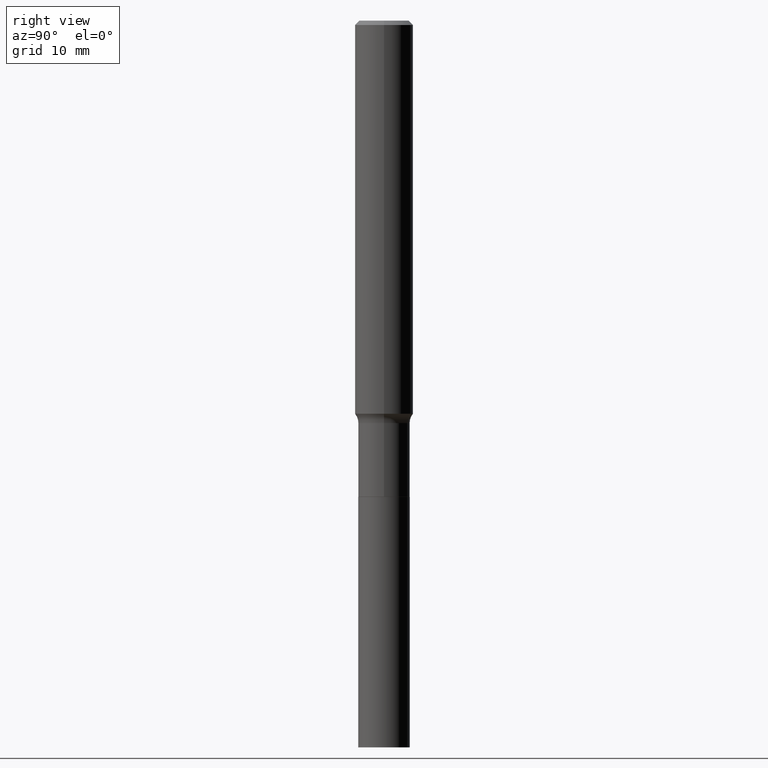
[diagram: clean part render]
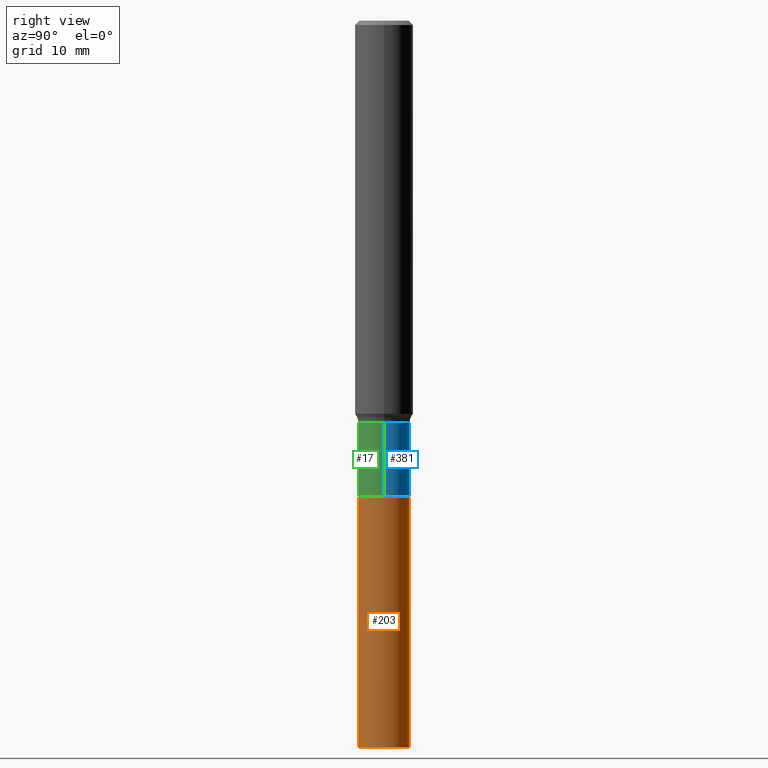
[diagram: same view with three faces highlighted in distinct colors, each labeled with its STEP entity id]
A machine part, right view with three faces highlighted in distinct colors.
Their STEP definitions:

[orange] entity #203 — the highlighted cylindrical surface (edge-blend (fillet) strip) has radius 3.5497 mm, axis along (-0, 0, 1).
#2 = AXIS2_PLACEMENT_3D ( 'NONE', #123, #92, #244 ) ;
#9 = DIRECTION ( 'NONE',  ( -6.982962677686265133E-15, -1.000000000000000000, 3.909621457837943227E-15 ) ) ;
#10 = EDGE_CURVE ( 'NONE', #197, #137, #383, .T. ) ;
#18 = CARTESIAN_POINT ( 'NONE',  ( 9.929834732248363439E-16, 0.1397499999999909925, -2.579000000000000625 ) ) ;
#29 = EDGE_CURVE ( 'NONE', #428, #271, #325, .T. ) ;
#40 = ORIENTED_EDGE ( 'NONE', *, *, #29, .T. ) ;
#63 = CARTESIAN_POINT ( 'NONE',  ( 9.929834732248030145E-16, 0.1397499999999910203, -2.579000000000000625 ) ) ;
#74 = CARTESIAN_POINT ( 'NONE',  ( 6.306864051151467131E-29, -9.004530372876471973E-15, -2.579000000000000181 ) ) ;
#80 = ORIENTED_EDGE ( 'NONE', *, *, #396, .T. ) ;
#86 = DIRECTION ( 'NONE',  ( -2.445656538134658831E-29, 3.491212496006390611E-15, 1.000000000000000000 ) ) ;
#92 = DIRECTION ( 'NONE',  ( -2.445656538134658831E-29, 3.491212496006390611E-15, 1.000000000000000000 ) ) ;
#123 = CARTESIAN_POINT ( 'NONE',  ( 6.306864051151467131E-29, -9.004530372876471973E-15, -2.579000000000000181 ) ) ;
#130 = FACE_OUTER_BOUND ( 'NONE', #404, .T. ) ;
#137 = VERTEX_POINT ( 'NONE', #18 ) ;
#142 = CARTESIAN_POINT ( 'NONE',  ( 9.929834732248195806E-16, 0.1397499999999862741, -3.937000000000001165 ) ) ;
#168 = CARTESIAN_POINT ( 'NONE',  ( -9.758690342065924904E-16, -0.1397500000000090059, -2.578999999999999293 ) ) ;
#176 = CARTESIAN_POINT ( 'NONE',  ( -9.758690342065593582E-16, -0.1397500000000137521, -3.937000000000000277 ) ) ;
#191 = AXIS2_PLACEMENT_3D ( 'NONE', #314, #445, #9 ) ;
#197 = VERTEX_POINT ( 'NONE', #168 ) ;
#203 = ADVANCED_FACE ( 'NONE', ( #130 ), #307, .T. ) ;
#219 = ORIENTED_EDGE ( 'NONE', *, *, #362, .F. ) ;
#244 = DIRECTION ( 'NONE',  ( -6.982962677686265133E-15, -1.000000000000000000, 3.909621457837943227E-15 ) ) ;
#252 = VECTOR ( 'NONE', #86, 39.37007874015748143 ) ;
#269 = AXIS2_PLACEMENT_3D ( 'NONE', #74, #299, #370 ) ;
#271 = VERTEX_POINT ( 'NONE', #142 ) ;
#299 = DIRECTION ( 'NONE',  ( -2.445656538134658831E-29, 3.491212496006390611E-15, 1.000000000000000000 ) ) ;
#306 = LINE ( 'NONE', #406, #252 ) ;
#307 = CYLINDRICAL_SURFACE ( 'NONE', #2, 0.1397500000000000131 ) ;
#312 = LINE ( 'NONE', #63, #350 ) ;
#314 = CARTESIAN_POINT ( 'NONE',  ( 9.628065629938335282E-29, -1.374559694245315281E-14, -3.937000000000000721 ) ) ;
#325 = CIRCLE ( 'NONE', #191, 0.1397500000000000131 ) ;
#350 = VECTOR ( 'NONE', #395, 39.37007874015748143 ) ;
#362 = EDGE_CURVE ( 'NONE', #428, #197, #306, .T. ) ;
#370 = DIRECTION ( 'NONE',  ( -6.982962677686265133E-15, -1.000000000000000000, 3.909621457837943227E-15 ) ) ;
#383 = CIRCLE ( 'NONE', #269, 0.1397500000000000131 ) ;
#389 = ORIENTED_EDGE ( 'NONE', *, *, #10, .F. ) ;
#395 = DIRECTION ( 'NONE',  ( -2.445656538134658831E-29, 3.491212496006390611E-15, 1.000000000000000000 ) ) ;
#396 = EDGE_CURVE ( 'NONE', #271, #137, #312, .T. ) ;
#404 = EDGE_LOOP ( 'NONE', ( #40, #80, #389, #219 ) ) ;
#406 = CARTESIAN_POINT ( 'NONE',  ( -9.758690342065924904E-16, -0.1397500000000090059, -2.578999999999999293 ) ) ;
#428 = VERTEX_POINT ( 'NONE', #176 ) ;
#445 = DIRECTION ( 'NONE',  ( -2.445656538134658831E-29, 3.491212496006390611E-15, 1.000000000000000000 ) ) ;

[blue] entity #381 — the highlighted cylindrical surface (edge-blend (fillet) strip) has radius 3.5496 mm, axis along (-0, 0, 1).
#7 = DIRECTION ( 'NONE',  ( -2.445468806185136597E-29, 3.491481338843145583E-15, 1.000000000000000000 ) ) ;
#19 = DIRECTION ( 'NONE',  ( -2.445468806185136597E-29, 3.491481338843145583E-15, 1.000000000000000000 ) ) ;
#20 = CARTESIAN_POINT ( 'NONE',  ( -0.1397499999999999576, -7.314298076284757115E-15, -2.180100000000000371 ) ) ;
#22 = VERTEX_POINT ( 'NONE', #277 ) ;
#31 = ORIENTED_EDGE ( 'NONE', *, *, #420, .F. ) ;
#41 = AXIS2_PLACEMENT_3D ( 'NONE', #112, #19, #426 ) ;
#67 = AXIS2_PLACEMENT_3D ( 'NONE', #177, #282, #248 ) ;
#77 = EDGE_CURVE ( 'NONE', #451, #120, #204, .T. ) ;
#106 = CARTESIAN_POINT ( 'NONE',  ( 0.1397499999999999576, -8.587647501018597988E-15, -2.180100000000000371 ) ) ;
#112 = CARTESIAN_POINT ( 'NONE',  ( 5.331366544364216431E-29, -7.611778466811941994E-15, -2.180100000000000371 ) ) ;
#120 = VERTEX_POINT ( 'NONE', #106 ) ;
#139 = CIRCLE ( 'NONE', #41, 0.1397499999999999576 ) ;
#164 = DIRECTION ( 'NONE',  ( 1.000000000000000000, -6.982962677686265922E-15, 4.876176775795935793E-29 ) ) ;
#173 = LINE ( 'NONE', #392, #262 ) ;
#177 = CARTESIAN_POINT ( 'NONE',  ( 6.305641316748374329E-29, -9.002784632207049680E-15, -2.578500000000000014 ) ) ;
#181 = AXIS2_PLACEMENT_3D ( 'NONE', #285, #7, #164 ) ;
#204 = LINE ( 'NONE', #410, #309 ) ;
#248 = DIRECTION ( 'NONE',  ( 1.000000000000000000, -6.982962677686273021E-15, 0.000000000000000000 ) ) ;
#261 = EDGE_CURVE ( 'NONE', #22, #290, #173, .T. ) ;
#262 = VECTOR ( 'NONE', #317, 39.37007874015748143 ) ;
#277 = CARTESIAN_POINT ( 'NONE',  ( -0.1397500000000000131, -7.314298076284757115E-15, -2.578500000000000014 ) ) ;
#281 = CIRCLE ( 'NONE', #67, 0.1397499999999999853 ) ;
#282 = DIRECTION ( 'NONE',  ( -2.445468806185136597E-29, 3.491481338843145583E-15, 1.000000000000000000 ) ) ;
#285 = CARTESIAN_POINT ( 'NONE',  ( 0.000000000000000000, 0.000000000000000000, 0.000000000000000000 ) ) ;
#290 = VERTEX_POINT ( 'NONE', #20 ) ;
#297 = EDGE_CURVE ( 'NONE', #451, #22, #281, .T. ) ;
#309 = VECTOR ( 'NONE', #347, 39.37007874015748143 ) ;
#317 = DIRECTION ( 'NONE',  ( -2.445468806185136877E-29, 3.491481338843145188E-15, 1.000000000000000000 ) ) ;
#319 = FACE_OUTER_BOUND ( 'NONE', #364, .T. ) ;
#332 = CARTESIAN_POINT ( 'NONE',  ( 0.1397499999999999853, -9.978653666413707252E-15, -2.578500000000000014 ) ) ;
#347 = DIRECTION ( 'NONE',  ( -2.445468806185136877E-29, 3.491481338843145188E-15, 1.000000000000000000 ) ) ;
#364 = EDGE_LOOP ( 'NONE', ( #461, #432, #31, #465 ) ) ;
#381 = ADVANCED_FACE ( 'NONE', ( #319 ), #452, .T. ) ;
#392 = CARTESIAN_POINT ( 'NONE',  ( -0.1397499999999999853, 9.929834732247399056E-16, -6.874211788631229584E-30 ) ) ;
#410 = CARTESIAN_POINT ( 'NONE',  ( 0.1397499999999999853, -9.758690342066555993E-16, 6.814457044174819178E-30 ) ) ;
#420 = EDGE_CURVE ( 'NONE', #120, #290, #139, .T. ) ;
#426 = DIRECTION ( 'NONE',  ( 1.000000000000000000, -6.982962677686267499E-15, 0.000000000000000000 ) ) ;
#432 = ORIENTED_EDGE ( 'NONE', *, *, #261, .T. ) ;
#451 = VERTEX_POINT ( 'NONE', #332 ) ;
#452 = CYLINDRICAL_SURFACE ( 'NONE', #181, 0.1397499999999999853 ) ;
#461 = ORIENTED_EDGE ( 'NONE', *, *, #297, .T. ) ;
#465 = ORIENTED_EDGE ( 'NONE', *, *, #77, .F. ) ;

[green] entity #17 — the highlighted cylindrical surface (edge-blend (fillet) strip) has radius 3.5496 mm, axis along (-0, 0, 1).
#14 = DIRECTION ( 'NONE',  ( -2.445468806185136597E-29, 3.491481338843145583E-15, 1.000000000000000000 ) ) ;
#17 = ADVANCED_FACE ( 'NONE', ( #429 ), #366, .T. ) ;
#20 = CARTESIAN_POINT ( 'NONE',  ( -0.1397499999999999576, -7.314298076284757115E-15, -2.180100000000000371 ) ) ;
#22 = VERTEX_POINT ( 'NONE', #277 ) ;
#50 = AXIS2_PLACEMENT_3D ( 'NONE', #407, #14, #414 ) ;
#60 = DIRECTION ( 'NONE',  ( -2.445468806185136597E-29, 3.491481338843145583E-15, 1.000000000000000000 ) ) ;
#77 = EDGE_CURVE ( 'NONE', #451, #120, #204, .T. ) ;
#98 = DIRECTION ( 'NONE',  ( 1.000000000000000000, -6.982962677686273021E-15, 0.000000000000000000 ) ) ;
#103 = CIRCLE ( 'NONE', #146, 0.1397499999999999853 ) ;
#106 = CARTESIAN_POINT ( 'NONE',  ( 0.1397499999999999576, -8.587647501018597988E-15, -2.180100000000000371 ) ) ;
#113 = DIRECTION ( 'NONE',  ( 1.000000000000000000, -6.982962677686267499E-15, 0.000000000000000000 ) ) ;
#120 = VERTEX_POINT ( 'NONE', #106 ) ;
#146 = AXIS2_PLACEMENT_3D ( 'NONE', #386, #60, #98 ) ;
#153 = CIRCLE ( 'NONE', #384, 0.1397499999999999576 ) ;
#155 = EDGE_CURVE ( 'NONE', #290, #120, #153, .T. ) ;
#173 = LINE ( 'NONE', #392, #262 ) ;
#183 = ORIENTED_EDGE ( 'NONE', *, *, #261, .F. ) ;
#187 = DIRECTION ( 'NONE',  ( -2.445468806185136597E-29, 3.491481338843145583E-15, 1.000000000000000000 ) ) ;
#204 = LINE ( 'NONE', #410, #309 ) ;
#234 = EDGE_LOOP ( 'NONE', ( #183, #301, #399, #401 ) ) ;
#261 = EDGE_CURVE ( 'NONE', #22, #290, #173, .T. ) ;
#262 = VECTOR ( 'NONE', #317, 39.37007874015748143 ) ;
#277 = CARTESIAN_POINT ( 'NONE',  ( -0.1397500000000000131, -7.314298076284757115E-15, -2.578500000000000014 ) ) ;
#289 = EDGE_CURVE ( 'NONE', #22, #451, #103, .T. ) ;
#290 = VERTEX_POINT ( 'NONE', #20 ) ;
#301 = ORIENTED_EDGE ( 'NONE', *, *, #289, .T. ) ;
#309 = VECTOR ( 'NONE', #347, 39.37007874015748143 ) ;
#317 = DIRECTION ( 'NONE',  ( -2.445468806185136877E-29, 3.491481338843145188E-15, 1.000000000000000000 ) ) ;
#332 = CARTESIAN_POINT ( 'NONE',  ( 0.1397499999999999853, -9.978653666413707252E-15, -2.578500000000000014 ) ) ;
#347 = DIRECTION ( 'NONE',  ( -2.445468806185136877E-29, 3.491481338843145188E-15, 1.000000000000000000 ) ) ;
#366 = CYLINDRICAL_SURFACE ( 'NONE', #50, 0.1397499999999999853 ) ;
#384 = AXIS2_PLACEMENT_3D ( 'NONE', #394, #187, #113 ) ;
#386 = CARTESIAN_POINT ( 'NONE',  ( 6.305641316748374329E-29, -9.002784632207049680E-15, -2.578500000000000014 ) ) ;
#392 = CARTESIAN_POINT ( 'NONE',  ( -0.1397499999999999853, 9.929834732247399056E-16, -6.874211788631229584E-30 ) ) ;
#394 = CARTESIAN_POINT ( 'NONE',  ( 5.331366544364216431E-29, -7.611778466811941994E-15, -2.180100000000000371 ) ) ;
#399 = ORIENTED_EDGE ( 'NONE', *, *, #77, .T. ) ;
#401 = ORIENTED_EDGE ( 'NONE', *, *, #155, .F. ) ;
#407 = CARTESIAN_POINT ( 'NONE',  ( 0.000000000000000000, 0.000000000000000000, 0.000000000000000000 ) ) ;
#410 = CARTESIAN_POINT ( 'NONE',  ( 0.1397499999999999853, -9.758690342066555993E-16, 6.814457044174819178E-30 ) ) ;
#414 = DIRECTION ( 'NONE',  ( 1.000000000000000000, -6.982962677686265922E-15, 4.876176775795935793E-29 ) ) ;
#429 = FACE_OUTER_BOUND ( 'NONE', #234, .T. ) ;
#451 = VERTEX_POINT ( 'NONE', #332 ) ;